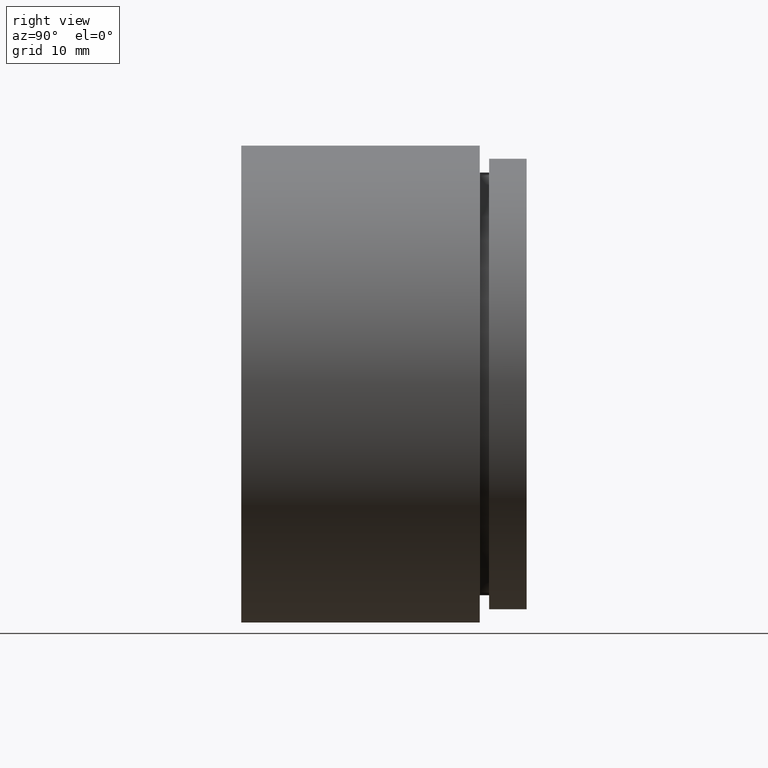
[diagram: clean part render]
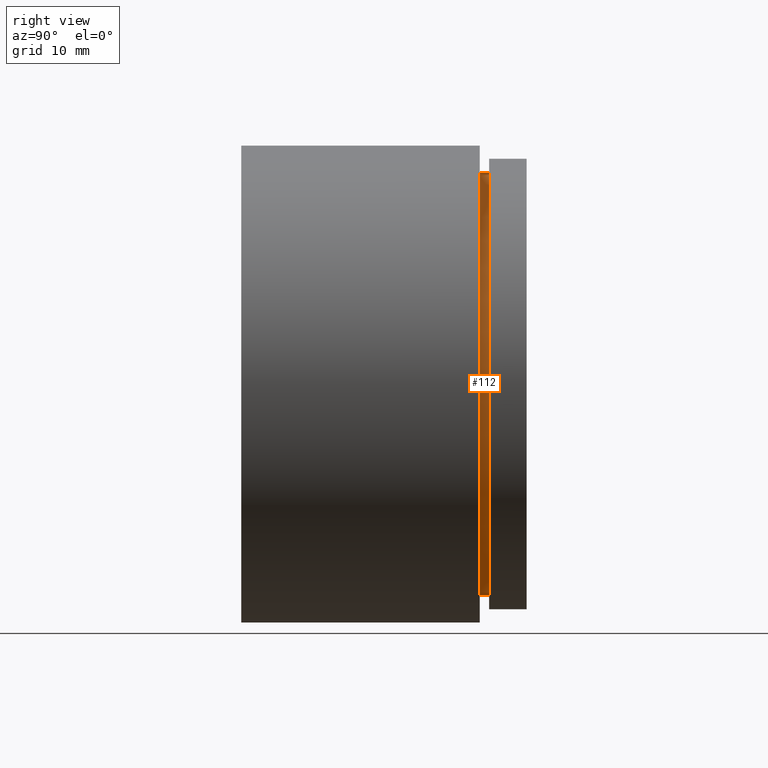
[diagram: same view with one face highlighted and labeled with its STEP entity id]
A machine part, right view. The second image highlights one B-rep face of the part: STEP entity #112.
In plain terms, the highlighted cylindrical surface (partial cylindrical patch) has radius 22.5 mm, axis along (-0, 1, -0).
Its self-contained STEP definition (entity closure, byte-faithful):
#24 = CYLINDRICAL_SURFACE ( 'NONE', #412, 22.49999999999989700 ) ;
#31 = FACE_OUTER_BOUND ( 'NONE', #300, .T. ) ;
#73 = LINE ( 'NONE', #200, #721 ) ;
#91 = CARTESIAN_POINT ( 'NONE',  ( 2.755455298081532600E-015, 25.39999999999997700, -22.49999999999989700 ) ) ;
#93 = AXIS2_PLACEMENT_3D ( 'NONE', #360, #181, #479 ) ;
#96 = CARTESIAN_POINT ( 'NONE',  ( 0.0000000000000000000, 25.39999999999997700, 22.49999999999989700 ) ) ;
#112 = ADVANCED_FACE ( 'NONE', ( #31 ), #24, .T. ) ;
#129 = EDGE_CURVE ( 'NONE', #322, #687, #73, .T. ) ;
#181 = DIRECTION ( 'NONE',  ( -0.0000000000000000000, 1.000000000000000000, -0.0000000000000000000 ) ) ;
#200 = CARTESIAN_POINT ( 'NONE',  ( 2.755455298081532600E-015, 161.3761669434274500, -22.49999999999989700 ) ) ;
#216 = ORIENTED_EDGE ( 'NONE', *, *, #609, .T. ) ;
#300 = EDGE_LOOP ( 'NONE', ( #216, #467, #506, #704 ) ) ;
#313 = CIRCLE ( 'NONE', #446, 22.49999999999989700 ) ;
#320 = DIRECTION ( 'NONE',  ( -0.0000000000000000000, 1.000000000000000000, -0.0000000000000000000 ) ) ;
#322 = VERTEX_POINT ( 'NONE', #91 ) ;
#325 = CARTESIAN_POINT ( 'NONE',  ( 0.0000000000000000000, 161.3761669434274500, 0.0000000000000000000 ) ) ;
#335 = LINE ( 'NONE', #512, #503 ) ;
#360 = CARTESIAN_POINT ( 'NONE',  ( 0.0000000000000000000, 26.39999999999997700, 0.0000000000000000000 ) ) ;
#401 = VERTEX_POINT ( 'NONE', #96 ) ;
#412 = AXIS2_PLACEMENT_3D ( 'NONE', #325, #516, #750 ) ;
#444 = CARTESIAN_POINT ( 'NONE',  ( 0.0000000000000000000, 26.39999999999997700, 22.49999999999989700 ) ) ;
#446 = AXIS2_PLACEMENT_3D ( 'NONE', #627, #320, #621 ) ;
#467 = ORIENTED_EDGE ( 'NONE', *, *, #129, .T. ) ;
#479 = DIRECTION ( 'NONE',  ( 0.0000000000000000000, 0.0000000000000000000, 1.000000000000000000 ) ) ;
#503 = VECTOR ( 'NONE', #692, 1000.000000000000000 ) ;
#506 = ORIENTED_EDGE ( 'NONE', *, *, #541, .F. ) ;
#512 = CARTESIAN_POINT ( 'NONE',  ( 0.0000000000000000000, 161.3761669434274500, 22.49999999999989700 ) ) ;
#516 = DIRECTION ( 'NONE',  ( -0.0000000000000000000, 1.000000000000000000, -0.0000000000000000000 ) ) ;
#541 = EDGE_CURVE ( 'NONE', #608, #687, #765, .T. ) ;
#573 = CARTESIAN_POINT ( 'NONE',  ( 2.755455298081532600E-015, 26.39999999999997700, -22.49999999999989700 ) ) ;
#608 = VERTEX_POINT ( 'NONE', #444 ) ;
#609 = EDGE_CURVE ( 'NONE', #401, #322, #313, .T. ) ;
#621 = DIRECTION ( 'NONE',  ( 0.0000000000000000000, 0.0000000000000000000, 1.000000000000000000 ) ) ;
#622 = DIRECTION ( 'NONE',  ( -0.0000000000000000000, 1.000000000000000000, -0.0000000000000000000 ) ) ;
#627 = CARTESIAN_POINT ( 'NONE',  ( 0.0000000000000000000, 25.39999999999997700, 0.0000000000000000000 ) ) ;
#687 = VERTEX_POINT ( 'NONE', #573 ) ;
#692 = DIRECTION ( 'NONE',  ( -0.0000000000000000000, 1.000000000000000000, -0.0000000000000000000 ) ) ;
#704 = ORIENTED_EDGE ( 'NONE', *, *, #710, .F. ) ;
#710 = EDGE_CURVE ( 'NONE', #401, #608, #335, .T. ) ;
#721 = VECTOR ( 'NONE', #622, 1000.000000000000000 ) ;
#750 = DIRECTION ( 'NONE',  ( 0.0000000000000000000, 0.0000000000000000000, 1.000000000000000000 ) ) ;
#765 = CIRCLE ( 'NONE', #93, 22.49999999999989700 ) ;